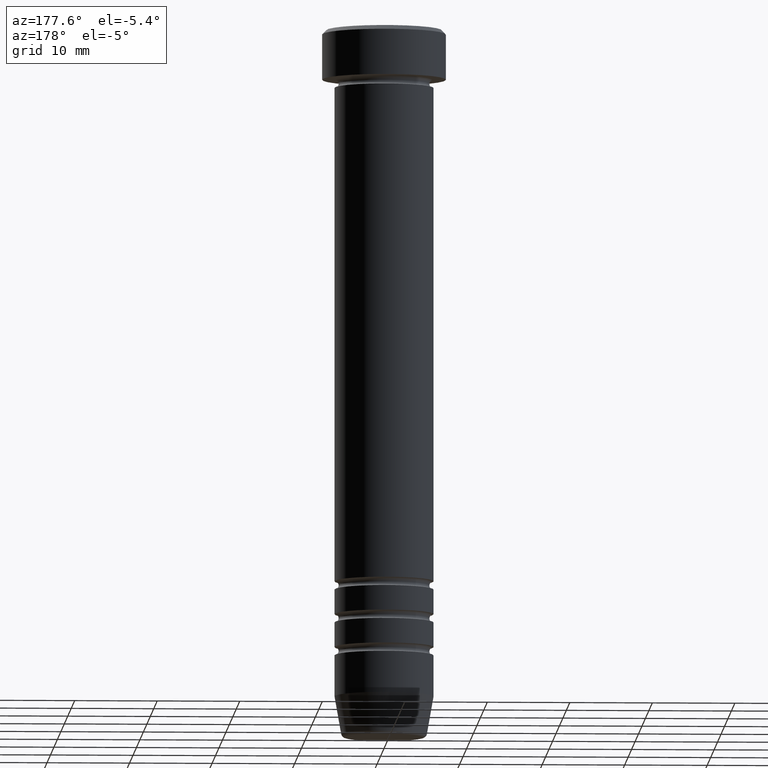
[diagram: clean part render]
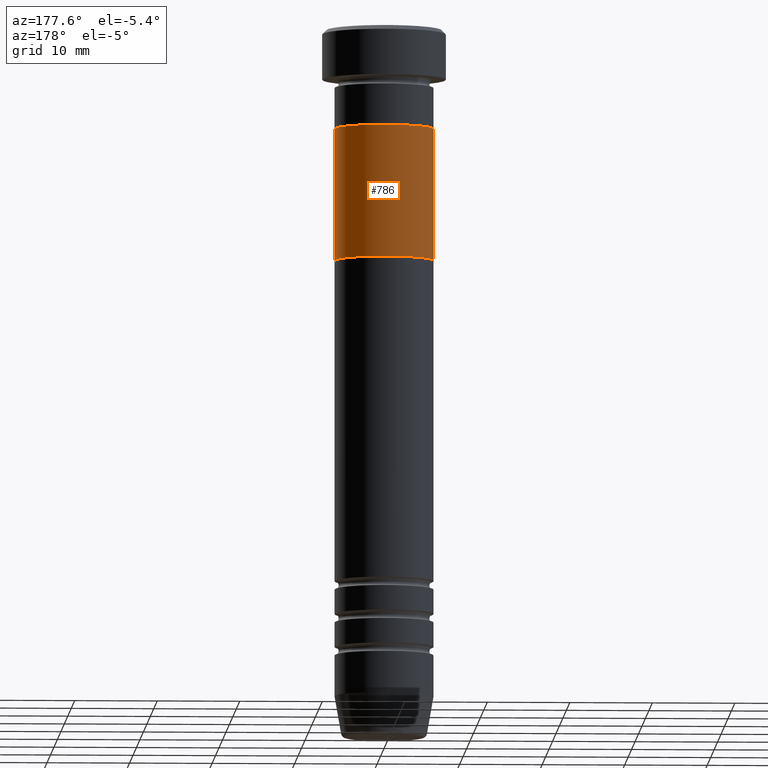
[diagram: same view with one face highlighted and labeled with its STEP entity id]
A machine part, auxiliary view. The second image highlights one B-rep face of the part: STEP entity #786.
In plain terms, the highlighted cylindrical surface (partial cylindrical patch) has radius 6 mm, axis along (-0, -0, 1).
Its self-contained STEP definition (entity closure, byte-faithful):
#10 = ORIENTED_EDGE ( 'NONE', *, *, #140, .F. ) ;
#51 = ORIENTED_EDGE ( 'NONE', *, *, #968, .T. ) ;
#52 = DIRECTION ( 'NONE',  ( -0.000000000000000000, -0.000000000000000000, 1.000000000000000000 ) ) ;
#78 = LINE ( 'NONE', #377, #300 ) ;
#136 = DIRECTION ( 'NONE',  ( 0.000000000000000000, 0.000000000000000000, -1.000000000000000000 ) ) ;
#139 = LINE ( 'NONE', #576, #389 ) ;
#140 = EDGE_CURVE ( 'NONE', #528, #267, #799, .T. ) ;
#204 = CARTESIAN_POINT ( 'NONE',  ( 0.000000000000000000, 0.000000000000000000, -28.00000000000000000 ) ) ;
#229 = CARTESIAN_POINT ( 'NONE',  ( 0.000000000000000000, 0.000000000000000000, -28.00000000000000000 ) ) ;
#267 = VERTEX_POINT ( 'NONE', #913 ) ;
#300 = VECTOR ( 'NONE', #927, 1000.000000000000000 ) ;
#319 = EDGE_LOOP ( 'NONE', ( #10, #51, #671, #1119 ) ) ;
#367 = CIRCLE ( 'NONE', #934, 6.000000000000000888 ) ;
#377 = CARTESIAN_POINT ( 'NONE',  ( -6.000000000000000888, 7.347880794884120722E-16, -28.00000000000000000 ) ) ;
#381 = DIRECTION ( 'NONE',  ( -0.000000000000000000, -0.000000000000000000, 1.000000000000000000 ) ) ;
#386 = EDGE_CURVE ( 'NONE', #267, #431, #139, .T. ) ;
#389 = VECTOR ( 'NONE', #52, 1000.000000000000000 ) ;
#431 = VERTEX_POINT ( 'NONE', #668 ) ;
#464 = VERTEX_POINT ( 'NONE', #601 ) ;
#491 = DIRECTION ( 'NONE',  ( -1.000000000000000000, 0.000000000000000000, 0.000000000000000000 ) ) ;
#528 = VERTEX_POINT ( 'NONE', #529 ) ;
#529 = CARTESIAN_POINT ( 'NONE',  ( -6.000000000000000888, 7.347880794884120722E-16, -28.00000000000000000 ) ) ;
#547 = DIRECTION ( 'NONE',  ( 0.000000000000000000, 0.000000000000000000, -1.000000000000000000 ) ) ;
#576 = CARTESIAN_POINT ( 'NONE',  ( 6.000000000000000888, 0.000000000000000000, -28.00000000000000000 ) ) ;
#601 = CARTESIAN_POINT ( 'NONE',  ( -6.000000000000000888, 7.347880794884120722E-16, -12.00000000000000000 ) ) ;
#668 = CARTESIAN_POINT ( 'NONE',  ( 6.000000000000000888, 0.000000000000000000, -12.00000000000000000 ) ) ;
#671 = ORIENTED_EDGE ( 'NONE', *, *, #920, .T. ) ;
#786 = ADVANCED_FACE ( 'NONE', ( #1004 ), #823, .T. ) ;
#799 = CIRCLE ( 'NONE', #1026, 6.000000000000000888 ) ;
#823 = CYLINDRICAL_SURFACE ( 'NONE', #1116, 6.000000000000000888 ) ;
#901 = DIRECTION ( 'NONE',  ( -1.000000000000000000, 0.000000000000000000, 0.000000000000000000 ) ) ;
#913 = CARTESIAN_POINT ( 'NONE',  ( 6.000000000000000888, 0.000000000000000000, -28.00000000000000000 ) ) ;
#920 = EDGE_CURVE ( 'NONE', #464, #431, #367, .T. ) ;
#927 = DIRECTION ( 'NONE',  ( -0.000000000000000000, -0.000000000000000000, 1.000000000000000000 ) ) ;
#934 = AXIS2_PLACEMENT_3D ( 'NONE', #979, #547, #901 ) ;
#968 = EDGE_CURVE ( 'NONE', #528, #464, #78, .T. ) ;
#979 = CARTESIAN_POINT ( 'NONE',  ( 0.000000000000000000, 0.000000000000000000, -12.00000000000000000 ) ) ;
#1004 = FACE_OUTER_BOUND ( 'NONE', #319, .T. ) ;
#1026 = AXIS2_PLACEMENT_3D ( 'NONE', #229, #136, #491 ) ;
#1066 = DIRECTION ( 'NONE',  ( 1.000000000000000000, 0.000000000000000000, 0.000000000000000000 ) ) ;
#1116 = AXIS2_PLACEMENT_3D ( 'NONE', #204, #381, #1066 ) ;
#1119 = ORIENTED_EDGE ( 'NONE', *, *, #386, .F. ) ;